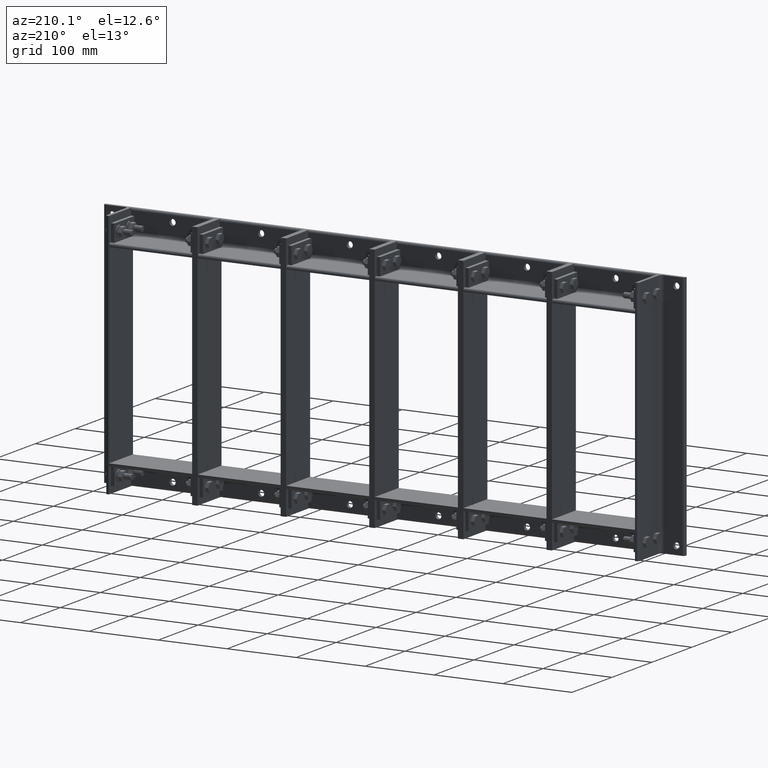
[diagram: clean part render]
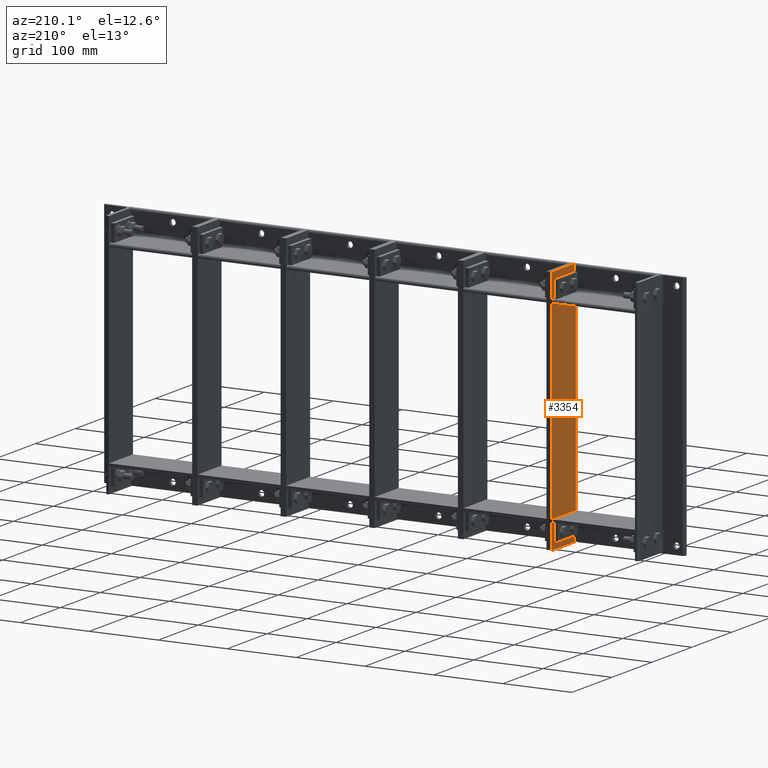
[diagram: same view with one face highlighted and labeled with its STEP entity id]
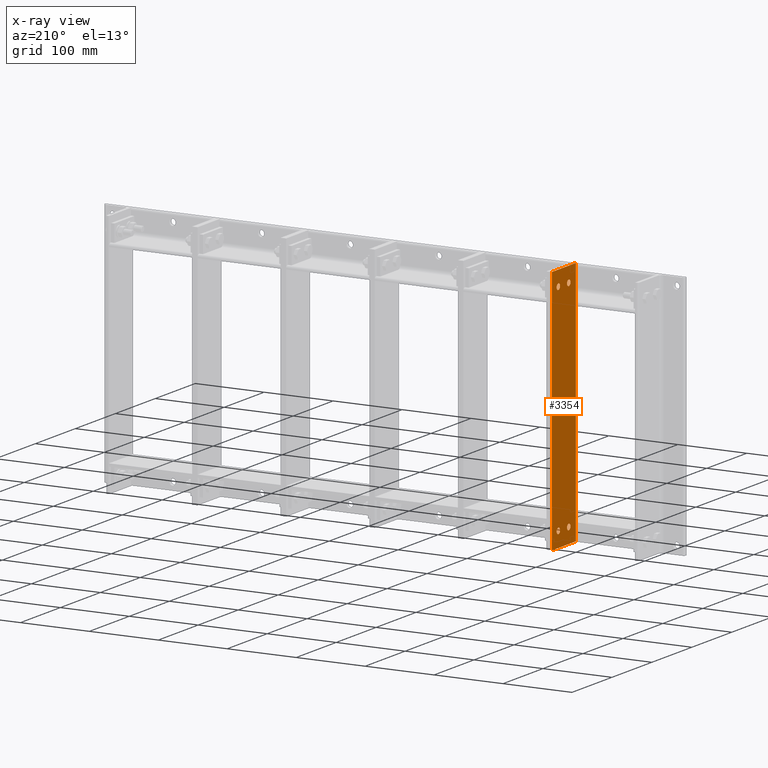
[diagram: x-ray of the same camera — body ghosted, the highlighted face saturated]
A machine part, auxiliary view. The second image highlights one B-rep face of the part: STEP entity #3354.
The next image is the same camera in x-ray: the body ghosted, the highlighted face saturated — about 0% of this face is hidden behind the body in this view.
In plain terms, the highlighted planar face has unit normal (-1, -0, -0).
Its self-contained STEP definition (entity closure, byte-faithful):
#3133=CARTESIAN_POINT('',(7.999999999999982,48.249999999999993,335.99999999999994));
#3134=VERTEX_POINT('',#3133);
#3135=CARTESIAN_POINT('',(7.999999999999972,43.999999999999993,335.99999999999994));
#3136=DIRECTION('',(-1.0,0.0,0.0));
#3137=DIRECTION('',(0.0,1.0,0.0));
#3138=AXIS2_PLACEMENT_3D('',#3135,#3136,#3137);
#3139=CIRCLE('',#3138,4.25);
#3140=EDGE_CURVE('',#3134,#3134,#3139,.T.);
#3161=CARTESIAN_POINT('',(7.999999999999982,48.249999999999993,22.0));
#3162=VERTEX_POINT('',#3161);
#3163=CARTESIAN_POINT('',(7.999999999999972,43.999999999999993,22.0));
#3164=DIRECTION('',(-1.0,0.0,0.0));
#3165=DIRECTION('',(0.0,1.0,0.0));
#3166=AXIS2_PLACEMENT_3D('',#3163,#3164,#3165);
#3167=CIRCLE('',#3166,4.25);
#3168=EDGE_CURVE('',#3162,#3162,#3167,.T.);
#3189=CARTESIAN_POINT('',(7.999999999999989,22.249999999999996,335.99999999999994));
#3190=VERTEX_POINT('',#3189);
#3191=CARTESIAN_POINT('',(7.999999999999972,18.0,335.99999999999994));
#3192=DIRECTION('',(-1.0,0.0,0.0));
#3193=DIRECTION('',(0.0,1.0,0.0));
#3194=AXIS2_PLACEMENT_3D('',#3191,#3192,#3193);
#3195=CIRCLE('',#3194,4.25);
#3196=EDGE_CURVE('',#3190,#3190,#3195,.T.);
#3217=CARTESIAN_POINT('',(7.999999999999989,22.249999999999996,22.0));
#3218=VERTEX_POINT('',#3217);
#3219=CARTESIAN_POINT('',(7.999999999999972,18.0,22.0));
#3220=DIRECTION('',(-1.0,0.0,0.0));
#3221=DIRECTION('',(0.0,1.0,0.0));
#3222=AXIS2_PLACEMENT_3D('',#3219,#3220,#3221);
#3223=CIRCLE('',#3222,4.25);
#3224=EDGE_CURVE('',#3218,#3218,#3223,.T.);
#3286=CARTESIAN_POINT('',(7.999999999999981,60.0,358.0));
#3287=VERTEX_POINT('',#3286);
#3294=CARTESIAN_POINT('',(7.999999999999981,60.0,0.0));
#3295=VERTEX_POINT('',#3294);
#3296=CARTESIAN_POINT('',(7.999999999999981,60.0,0.0));
#3297=DIRECTION('',(0.0,0.0,1.0));
#3298=VECTOR('',#3297,358.0);
#3299=LINE('',#3296,#3298);
#3300=EDGE_CURVE('',#3295,#3287,#3299,.T.);
#3312=CARTESIAN_POINT('',(7.999999999999981,60.0,0.0));
#3313=DIRECTION('',(1.0,0.0,0.0));
#3314=DIRECTION('',(0.0,0.0,-1.0));
#3315=AXIS2_PLACEMENT_3D('',#3312,#3313,#3314);
#3316=PLANE('',#3315);
#3317=CARTESIAN_POINT('',(7.999999999999994,0.0,358.0));
#3318=VERTEX_POINT('',#3317);
#3319=CARTESIAN_POINT('',(7.999999999999981,60.0,358.0));
#3320=DIRECTION('',(0.0,-1.0,0.0));
#3321=VECTOR('',#3320,60.0);
#3322=LINE('',#3319,#3321);
#3323=EDGE_CURVE('',#3287,#3318,#3322,.T.);
#3324=ORIENTED_EDGE('',*,*,#3323,.T.);
#3325=CARTESIAN_POINT('',(7.999999999999994,0.0,0.0));
#3326=VERTEX_POINT('',#3325);
#3327=CARTESIAN_POINT('',(7.999999999999994,0.0,0.0));
#3328=DIRECTION('',(0.0,0.0,1.0));
#3329=VECTOR('',#3328,358.0);
#3330=LINE('',#3327,#3329);
#3331=EDGE_CURVE('',#3326,#3318,#3330,.T.);
#3332=ORIENTED_EDGE('',*,*,#3331,.F.);
#3333=CARTESIAN_POINT('',(7.999999999999994,0.0,0.0));
#3334=DIRECTION('',(0.0,1.0,0.0));
#3335=VECTOR('',#3334,60.0);
#3336=LINE('',#3333,#3335);
#3337=EDGE_CURVE('',#3326,#3295,#3336,.T.);
#3338=ORIENTED_EDGE('',*,*,#3337,.T.);
#3339=ORIENTED_EDGE('',*,*,#3300,.T.);
#3340=EDGE_LOOP('',(#3324,#3332,#3338,#3339));
#3341=FACE_OUTER_BOUND('',#3340,.T.);
#3342=ORIENTED_EDGE('',*,*,#3140,.T.);
#3343=EDGE_LOOP('',(#3342));
#3344=FACE_BOUND('',#3343,.T.);
#3345=ORIENTED_EDGE('',*,*,#3168,.T.);
#3346=EDGE_LOOP('',(#3345));
#3347=FACE_BOUND('',#3346,.T.);
#3348=ORIENTED_EDGE('',*,*,#3196,.T.);
#3349=EDGE_LOOP('',(#3348));
#3350=FACE_BOUND('',#3349,.T.);
#3351=ORIENTED_EDGE('',*,*,#3224,.T.);
#3352=EDGE_LOOP('',(#3351));
#3353=FACE_BOUND('',#3352,.T.);
#3354=ADVANCED_FACE('',(#3341,#3344,#3347,#3350,#3353),#3316,.T.);